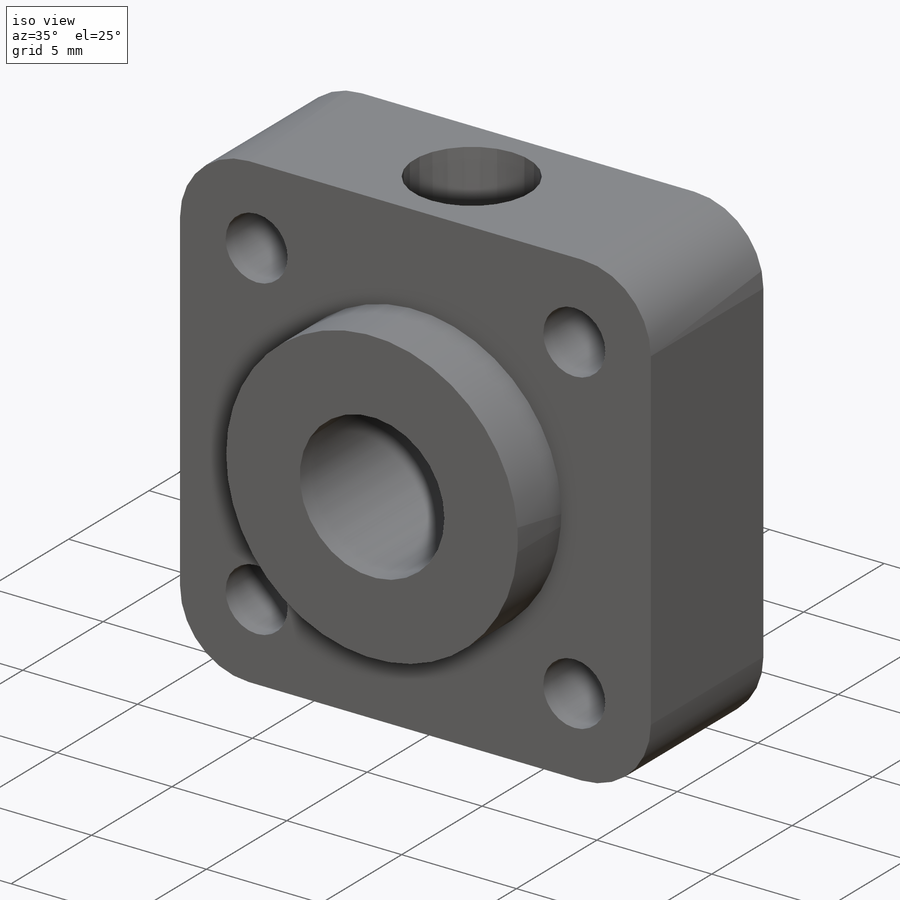
[diagram: iso view]
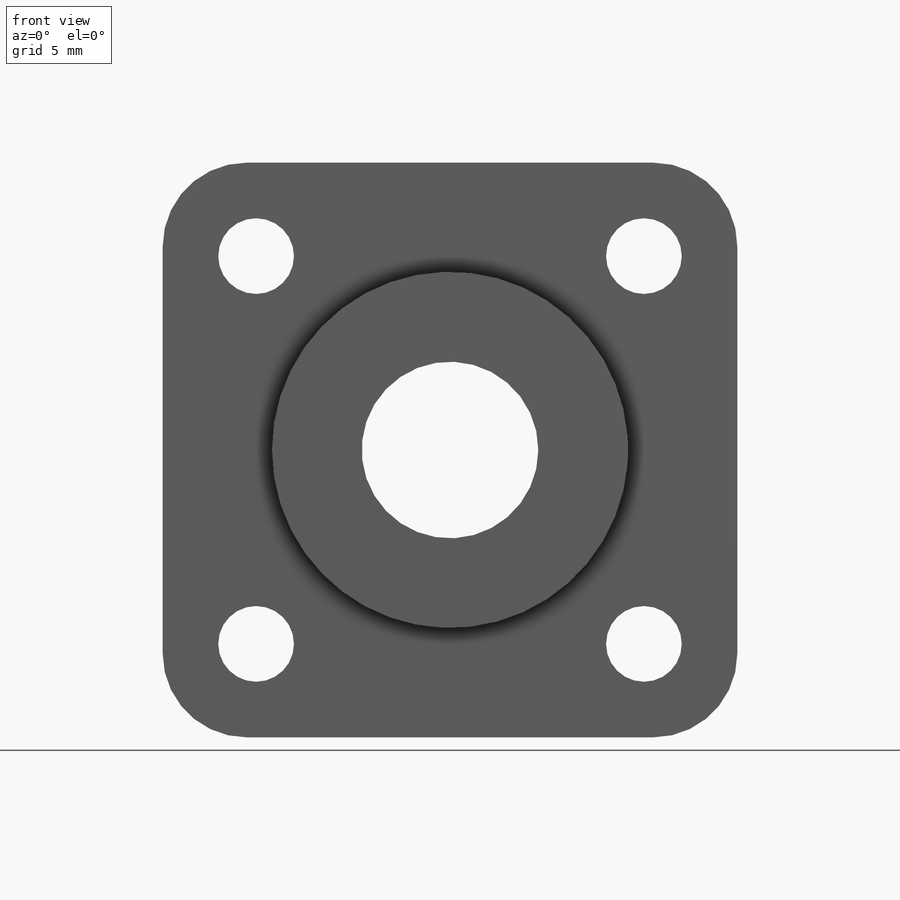
[diagram: front view]
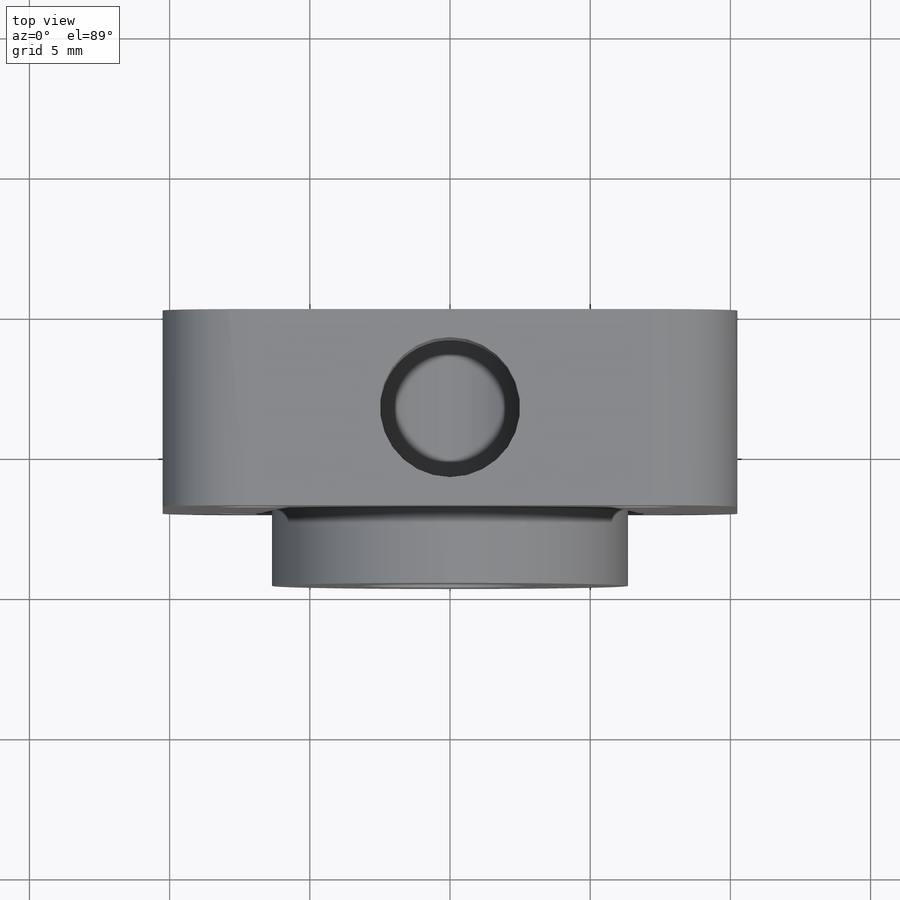
[diagram: top view]
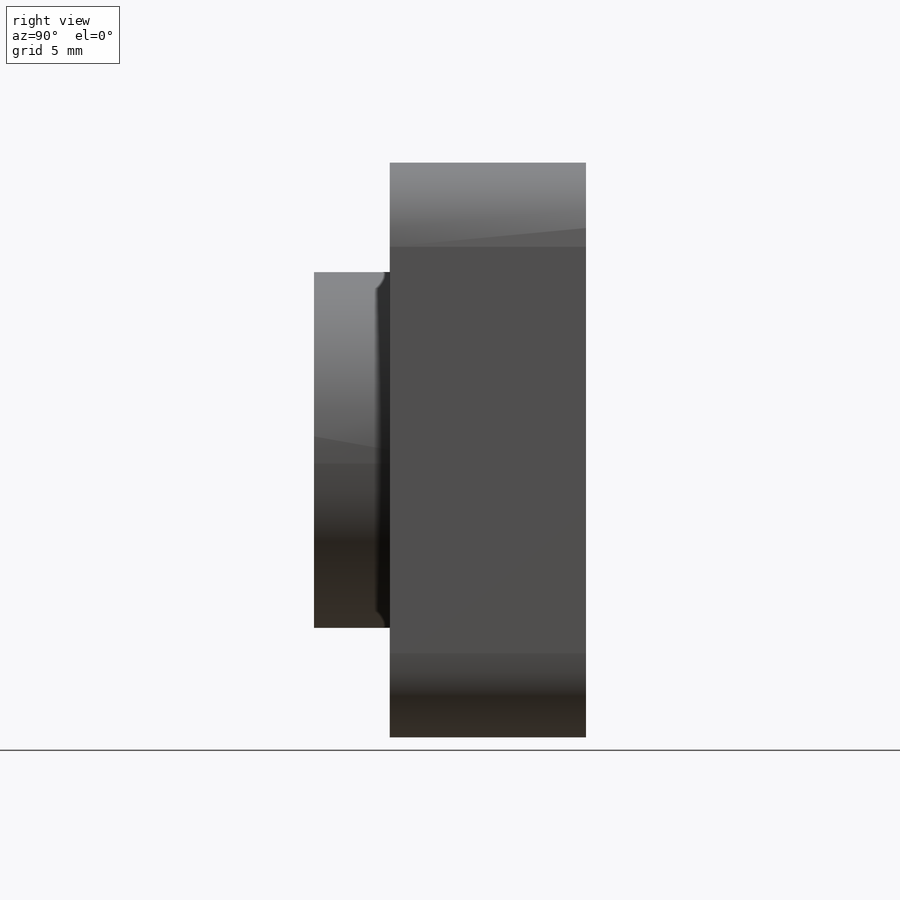
[diagram: right view]
SOLIDWORKS PART (.sldprt)
format: sldprt  version: not decoded by parser v0  size: 363,520 bytes
history: native  units: mm
features: sketch x5, plane x3, cut_extrude x3, extrude x2, material x1, fillet x1 (+8 scaffold rows collapsed)
feature tree (23):
  scaffold x8  (default folders/planes/origin — collapsed)
  material  "Material <sin especificar>"
  plane  "Alzado"
  plane  "Planta"
  plane  "Vista lateral"
  sketch  "Croquis1"  dims[D1=20.5mm D2=20.5mm]
  extrude  "Saliente-Extruir1"  Depth=7mm
  fillet  "Redondeo1"  Radius=3mm
  sketch  "Croquis2"  dims[D1=12.7mm]
  extrude  "Saliente-Extruir2"  Depth=2.7mm
  sketch  "Croquis3"  dims[D1=6.3mm]
  cut_extrude  "Cortar-Extruir1"  [1 undecoded]
  sketch  "Croquis4"  dims[D1=2.7mm D2=2.7mm D3=2.7mm D4=2.7mm D5=9.78mm D6=9.78mm D7=9.78mm D8=9.78mm]
  cut_extrude  "Cortar-Extruir2"  [1 undecoded]
  sketch  "Croquis5"  dims[D1=5.0mm]
  cut_extrude  "Cortar-Extruir3"  [1 undecoded]
decode coverage: 8 of 11 modeling features carry decoded parameters
note: 3 parameter values undecoded
summary: no parameter record found for 3 features
note: suppression state not decoded; provenance and decode notes live in map.json
